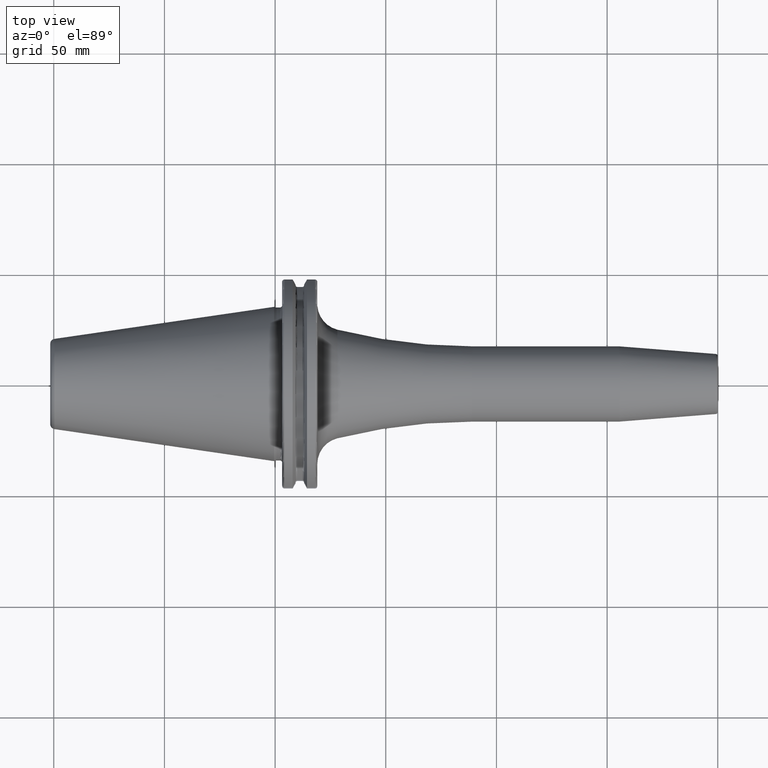
[diagram: clean part render]
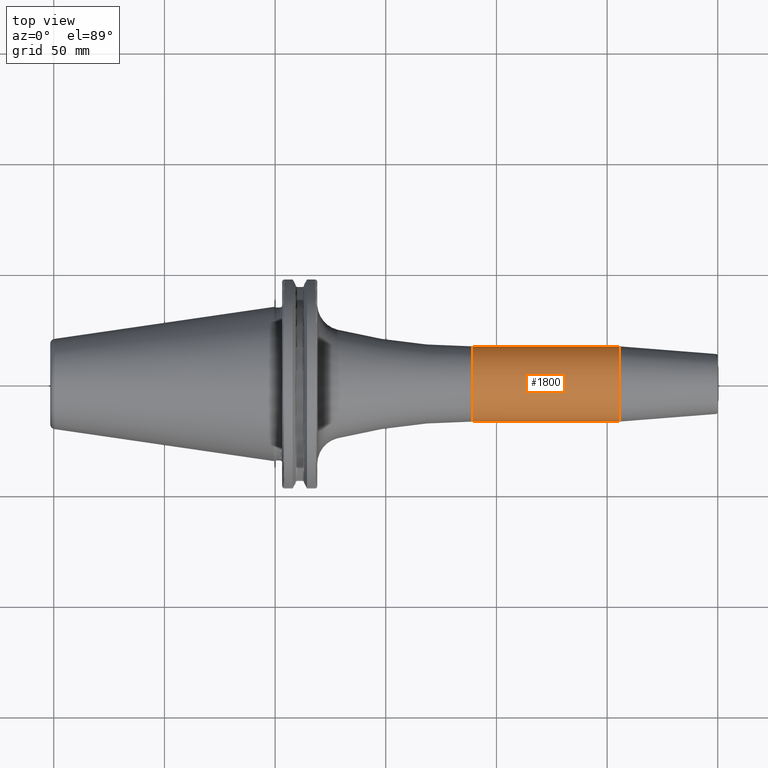
[diagram: same view with one face highlighted and labeled with its STEP entity id]
A machine part, top view. The second image highlights one B-rep face of the part: STEP entity #1800.
In plain terms, the highlighted cylindrical surface (partial cylindrical patch) has radius 17 mm, axis along (1, 0, 0).
Its self-contained STEP definition (entity closure, byte-faithful):
#221=DIRECTION('',(-1.E0,0.E0,0.E0));
#222=VECTOR('',#221,6.647828342339E1);
#223=CARTESIAN_POINT('',(1.555282834234E2,-1.7E1,0.E0));
#224=LINE('',#223,#222);
#230=DIRECTION('',(-1.E0,0.E0,0.E0));
#231=VECTOR('',#230,6.647828342339E1);
#232=CARTESIAN_POINT('',(1.555282834234E2,1.7E1,0.E0));
#233=LINE('',#232,#231);
#234=CARTESIAN_POINT('',(8.905E1,0.E0,0.E0));
#235=DIRECTION('',(1.E0,0.E0,0.E0));
#236=DIRECTION('',(0.E0,1.E0,0.E0));
#237=AXIS2_PLACEMENT_3D('',#234,#235,#236);
#239=CARTESIAN_POINT('',(1.555282834234E2,0.E0,0.E0));
#240=DIRECTION('',(1.E0,0.E0,0.E0));
#241=DIRECTION('',(0.E0,1.E0,0.E0));
#242=AXIS2_PLACEMENT_3D('',#239,#240,#241);
#1470=CARTESIAN_POINT('',(1.555282834234E2,1.7E1,0.E0));
#1471=CARTESIAN_POINT('',(1.555282834234E2,-1.7E1,0.E0));
#1472=VERTEX_POINT('',#1470);
#1473=VERTEX_POINT('',#1471);
#1500=CARTESIAN_POINT('',(8.905E1,1.7E1,0.E0));
#1501=VERTEX_POINT('',#1500);
#1502=CARTESIAN_POINT('',(8.905E1,-1.7E1,0.E0));
#1503=VERTEX_POINT('',#1502);
#1788=CARTESIAN_POINT('',(1.00025E1,0.E0,0.E0));
#1789=DIRECTION('',(1.E0,0.E0,0.E0));
#1790=DIRECTION('',(0.E0,-1.E0,0.E0));
#1791=AXIS2_PLACEMENT_3D('',#1788,#1789,#1790);
#1792=CYLINDRICAL_SURFACE('',#1791,1.7E1);
#1793=ORIENTED_EDGE('',*,*,#1739,.F.);
#1794=ORIENTED_EDGE('',*,*,#1783,.F.);
#1796=ORIENTED_EDGE('',*,*,#1795,.T.);
#1797=ORIENTED_EDGE('',*,*,#1779,.T.);
#1798=EDGE_LOOP('',(#1793,#1794,#1796,#1797));
#1799=FACE_OUTER_BOUND('',#1798,.F.);
#1800=ADVANCED_FACE('',(#1799),#1792,.T.);
#238=CIRCLE('',#237,1.7E1);
#243=CIRCLE('',#242,1.7E1);
#1739=EDGE_CURVE('',#1501,#1503,#238,.T.);
#1779=EDGE_CURVE('',#1473,#1503,#224,.T.);
#1783=EDGE_CURVE('',#1472,#1501,#233,.T.);
#1795=EDGE_CURVE('',#1472,#1473,#243,.T.);